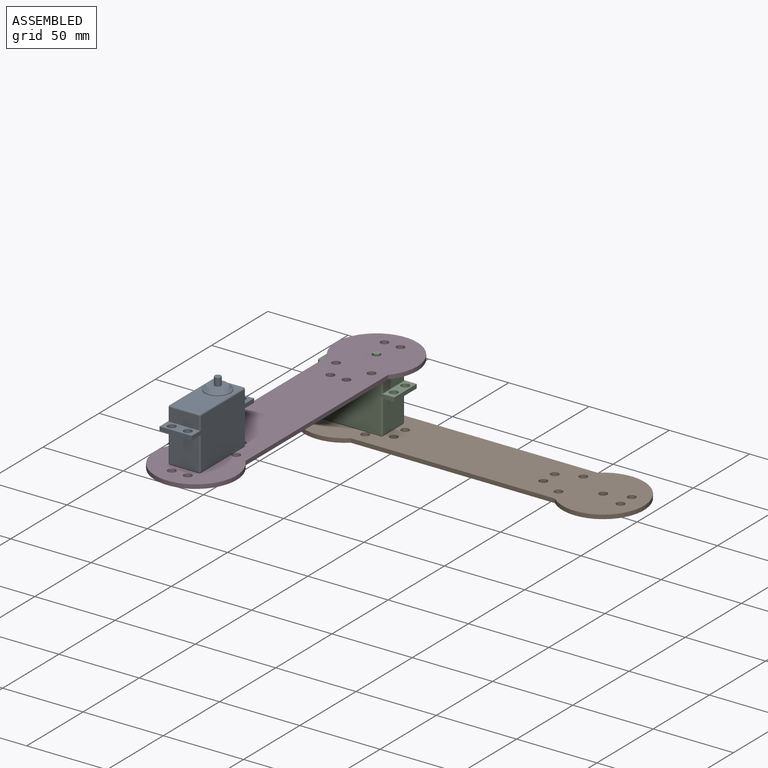
[diagram: assembled view]
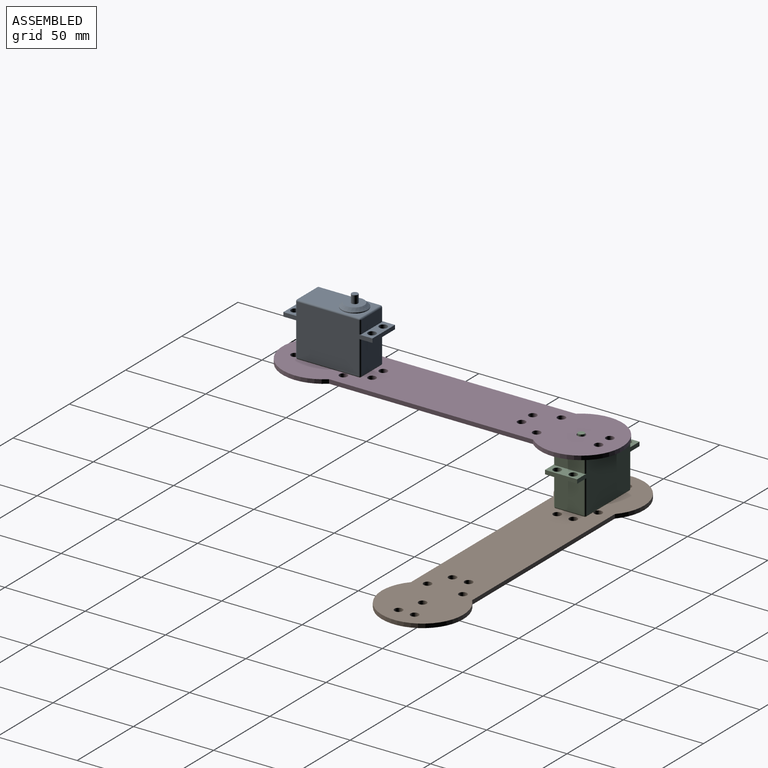
[diagram: assembled view, second angle]
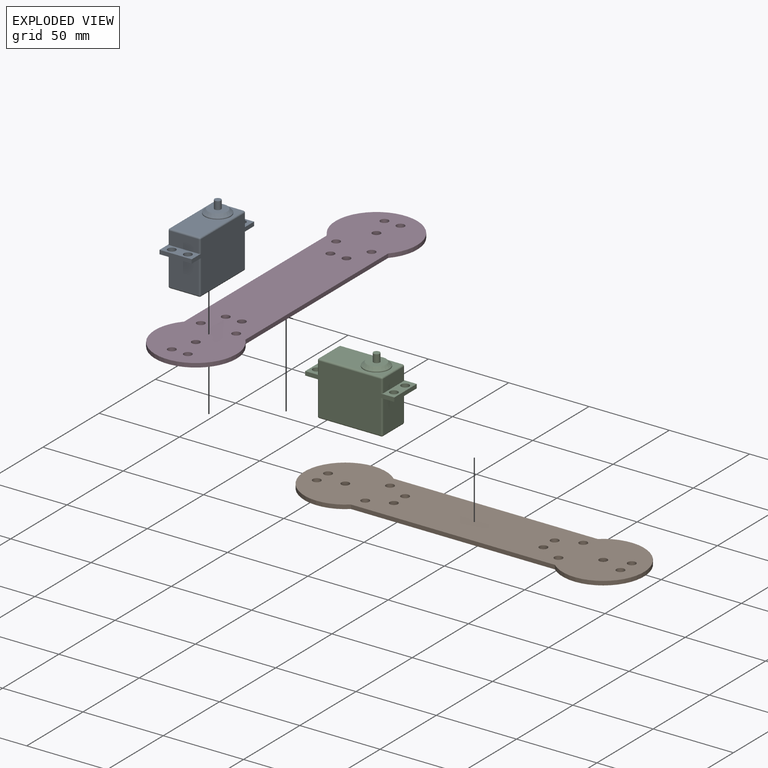
[diagram: exploded view]
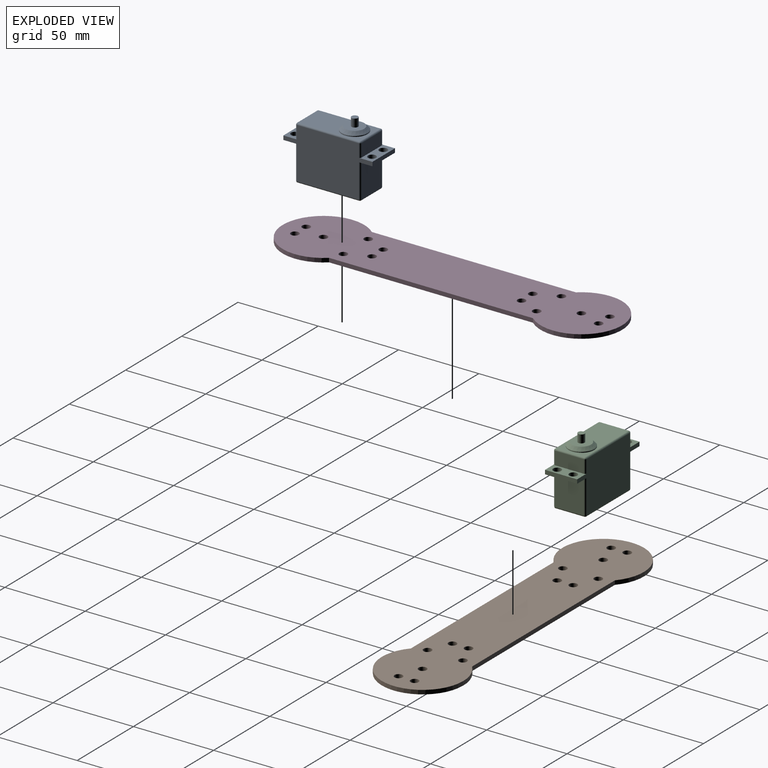
[diagram: exploded view, second angle]
ASSEMBLY  parts=4 mates=3
PART A: 47 faces, bbox 55.5x20x41.1 mm
  f0: cylinder r=8mm len=16mm, axis (0,0,-1), area 25.1mm2, adj f1,f2
  f1: cone r=8mm half-angle=45deg, axis (0,0,-1), area 124.4mm2, adj f0,f3
  f2: plane 38.5x18mm, normal (0,0,1), area 491.9mm2, adj f0,f4,f5,f6,f7
  f3: plane 12x12mm, normal (0,0,1), area 100.5mm2, adj f1,f8
  f4: cylinder r=1mm len=18mm, axis (0,-1,0), area 28.3mm2, adj f2,f9,f10,f11
  f5: cylinder r=1mm len=38.5mm, axis (-1,0,0), area 60.5mm2, adj f2,f10,f12,f13
  f6: cylinder r=1mm len=38.5mm, axis (1,0,0), area 60.5mm2, adj f2,f11,f14,f15
  f7: cylinder r=1mm len=18mm, axis (0,1,0), area 28.3mm2, adj f2,f12,f15,f16
  f8: cylinder r=2mm len=5mm, axis (0,0,-1), area 62.8mm2, adj f3,f17
  f9: plane 18x8.1mm, normal (-1,0,0), area 145.8mm2, adj f4,f18,f19,f20
  f10: sphere r=1mm, area 1.6mm2, adj f4,f5,f19
  f11: sphere r=1mm, area 1.6mm2, adj f4,f6,f20
  f12: sphere r=1mm, area 1.6mm2, adj f5,f7,f21
  f13: plane 55.5x31.6mm, normal (0,1,0), area 1259.1mm2, adj f5,f18,f19,f21,f22,f23,f24,f25
  f14: plane 55.5x31.6mm, normal (0,-1,0), area 1259.1mm2, adj f6,f18,f20,f25,f26,f27,f28,f29
  f15: sphere r=1mm, area 1.6mm2, adj f6,f7,f31
  f16: plane 18x8.1mm, normal (1,0,0), area 145.8mm2, adj f7,f21,f27,f31
  f17: plane 4x4mm, normal (0,0,1), area 12.6mm2, adj f8
  f18: plane 20x8.5mm, normal (0,0,1), area 111.2mm2, adj f9,f13,f14,f19,f20,f32,f33,f34
  f19: cylinder r=1mm len=8.1mm, axis (0,0,-1), area 12.7mm2, adj f9,f10,f13,f18
  f20: cylinder r=1mm len=8.1mm, axis (0,0,-1), area 12.7mm2, adj f9,f11,f14,f18
  f21: cylinder r=1mm len=8.1mm, axis (0,0,1), area 12.7mm2, adj f12,f13,f16,f27
  f22: cylinder r=1mm len=38.5mm, axis (-1,0,0), area 60.5mm2, adj f13,f35,f36,f37
  f23: cylinder r=1mm len=21mm, axis (0,0,1), area 33mm2, adj f13,f25,f36,f38
  f24: cylinder r=1mm len=21mm, axis (0,0,1), area 33mm2, adj f13,f26,f37,f39
  f25: plane 20x8.5mm, normal (0,0,-1), area 111.2mm2, adj f13,f14,f23,f29,f32,f33,f34,f38
  f26: plane 20x8.5mm, normal (0,0,-1), area 111.2mm2, adj f13,f14,f24,f30,f39,f40,f41,f42
  f27: plane 20x8.5mm, normal (0,0,1), area 111.2mm2, adj f13,f14,f16,f21,f31,f40,f41,f42
  f28: cylinder r=1mm len=38.5mm, axis (1,0,0), area 60.5mm2, adj f14,f35,f43,f44
  f29: cylinder r=1mm len=21mm, axis (0,0,-1), area 33mm2, adj f14,f25,f38,f43
  f30: cylinder r=1mm len=21mm, axis (0,0,1), area 33mm2, adj f14,f26,f39,f44
  f31: cylinder r=1mm len=8.1mm, axis (0,0,-1), area 12.7mm2, adj f14,f15,f16,f27
  f32: plane 20x2.5mm, normal (-1,0,0), area 50mm2, adj f13,f14,f18,f25
  f33: cylinder r=2.5mm len=5mm, axis (0,0,1), area 39.3mm2, adj f18,f25
  f34: cylinder r=2.5mm len=5mm, axis (0,0,1), area 39.3mm2, adj f18,f25
  f35: plane 38.5x18mm, normal (0,0,-1), area 693mm2, adj f22,f28,f45,f46
  f36: sphere r=1mm, area 1.6mm2, adj f22,f23,f45
  f37: sphere r=1mm, area 1.6mm2, adj f22,f24,f46
  f38: plane 21x18mm, normal (-1,0,0), area 378mm2, adj f23,f25,f29,f45
  f39: plane 21x18mm, normal (1,0,0), area 378mm2, adj f24,f26,f30,f46
  f40: plane 20x2.5mm, normal (1,0,0), area 50mm2, adj f13,f14,f26,f27
  f41: cylinder r=2.5mm len=5mm, axis (0,0,1), area 39.3mm2, adj f26,f27
  f42: cylinder r=2.5mm len=5mm, axis (0,0,1), area 39.3mm2, adj f26,f27
  f43: sphere r=1mm, area 1.6mm2, adj f28,f29,f45
  f44: sphere r=1mm, area 1.6mm2, adj f28,f30,f46
  f45: cylinder r=1mm len=18mm, axis (0,1,0), area 28.3mm2, adj f35,f36,f38,f43
  f46: cylinder r=1mm len=18mm, axis (0,1,0), area 28.3mm2, adj f35,f37,f39,f44
PART B: 20 faces, bbox 50.8x2.5x211.4 mm
  f0: plane 127x2.54mm, normal (1,0,0), area 322.6mm2, adj f1,f3,f4,f5
  f1: cylinder r=25.4mm len=50.8mm, axis (0,1,0), area 295.9mm2, adj f0,f2,f4,f5
  f2: plane 127x2.54mm, normal (-1,0,0), area 322.6mm2, adj f1,f3,f4,f5
  f3: cylinder r=25.4mm len=50.8mm, axis (0,1,0), area 295.9mm2, adj f0,f2,f4,f5
  f4: plane 211.4x50.8mm, normal (0,-1,0), area 8163.3mm2, adj f0,f1,f2,f3,f6,f7,f8,f9
  f5: plane 211.4x50.8mm, normal (0,1,0), area 8163.3mm2, adj f0,f1,f2,f3,f6,f7,f8,f9
  f6: cylinder r=2.5mm len=5mm, axis (0,-1,0), area 39.9mm2, adj f4,f5
  f7: cylinder r=2.5mm len=5mm, axis (0,-1,0), area 39.9mm2, adj f4,f5
  f8: cylinder r=2.5mm len=5mm, axis (0,-1,0), area 39.9mm2, adj f4,f5
  f9: cylinder r=2.5mm len=5mm, axis (0,-1,0), area 39.9mm2, adj f4,f5
  f10: cylinder r=2.5mm len=5mm, axis (0,-1,0), area 39.9mm2, adj f4,f5
  f11: cylinder r=2.5mm len=5mm, axis (0,-1,0), area 39.9mm2, adj f4,f5
  f12: cylinder r=2.5mm len=5mm, axis (0,-1,0), area 39.9mm2, adj f4,f5
  f13: cylinder r=2.5mm len=5mm, axis (0,-1,0), area 39.9mm2, adj f4,f5
  f14: cylinder r=2.5mm len=5mm, axis (0,-1,0), area 39.9mm2, adj f4,f5
  f15: cylinder r=2.5mm len=5mm, axis (0,-1,0), area 39.9mm2, adj f4,f5
  f16: cylinder r=2.5mm len=5mm, axis (0,-1,0), area 39.9mm2, adj f4,f5
  f17: cylinder r=2.5mm len=5mm, axis (0,-1,0), area 39.9mm2, adj f4,f5
  f18: cylinder r=2.5mm len=5mm, axis (0,-1,0), area 39.9mm2, adj f4,f5
  f19: cylinder r=2.5mm len=5mm, axis (0,-1,0), area 39.9mm2, adj f4,f5
PART C: same geometry as A
PART D: same geometry as B
PLACE A rot(axis=(0,0,1),90deg) t=(-10.17,-231.27,105.32)mm
PLACE B rot(axis=(0.58,-0.58,-0.58),120deg) t=(-22.77,-41.12,64.22)mm
PLACE C t=(-50.07,-70.17,64.72)mm
PLACE D rot(axis=(-1,0,0),90deg) t=(-39.22,-76.97,102.28)mm
MATE revolute D.f1 <-> C.f0  axis (0,0,1) through (-20.17,-60.17,104.82)mm
MATE fastened A.f33 <-> D.f13  axis (0,0,1) through (-25.17,-235.02,129.82)mm
MATE fastened C.f41 <-> B.f10  axis (0,0,1) through (-5.82,-65.17,89.22)mm
